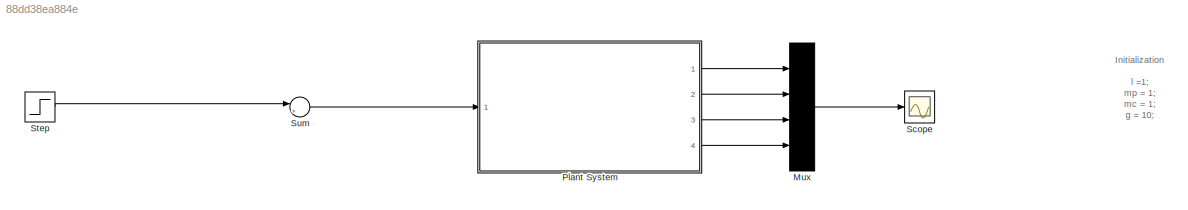
MODEL slx_88dd38ea884e
KIND model
CONFIG AbsTol = auto
CONFIG EnableMultiTasking = off
CONFIG FixedStep = auto
CONFIG MaxStep = auto
CONFIG MinStep = auto
CONFIG PreLoadFcn = l =1;\nmp = 1;\nmc = 1;\ng = 10;\n
CONFIG RelTol = 1e-3
CONFIG SampleTimeConstraint = Unconstrained
CONFIG SolverName = VariableStepAuto
CONFIG StartTime = 0.0
CONFIG StopTime = 2
BLOCK [Mux] Mux
  DisplayOption = bar
  Ports = [4, 1]
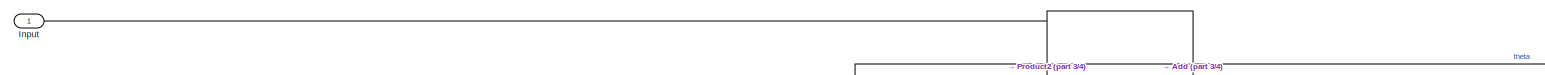
[diagram: Plant System - part 1/4, top left region]
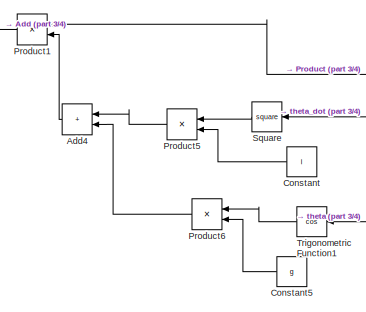
[diagram: Plant System - part 2/4, top left region]
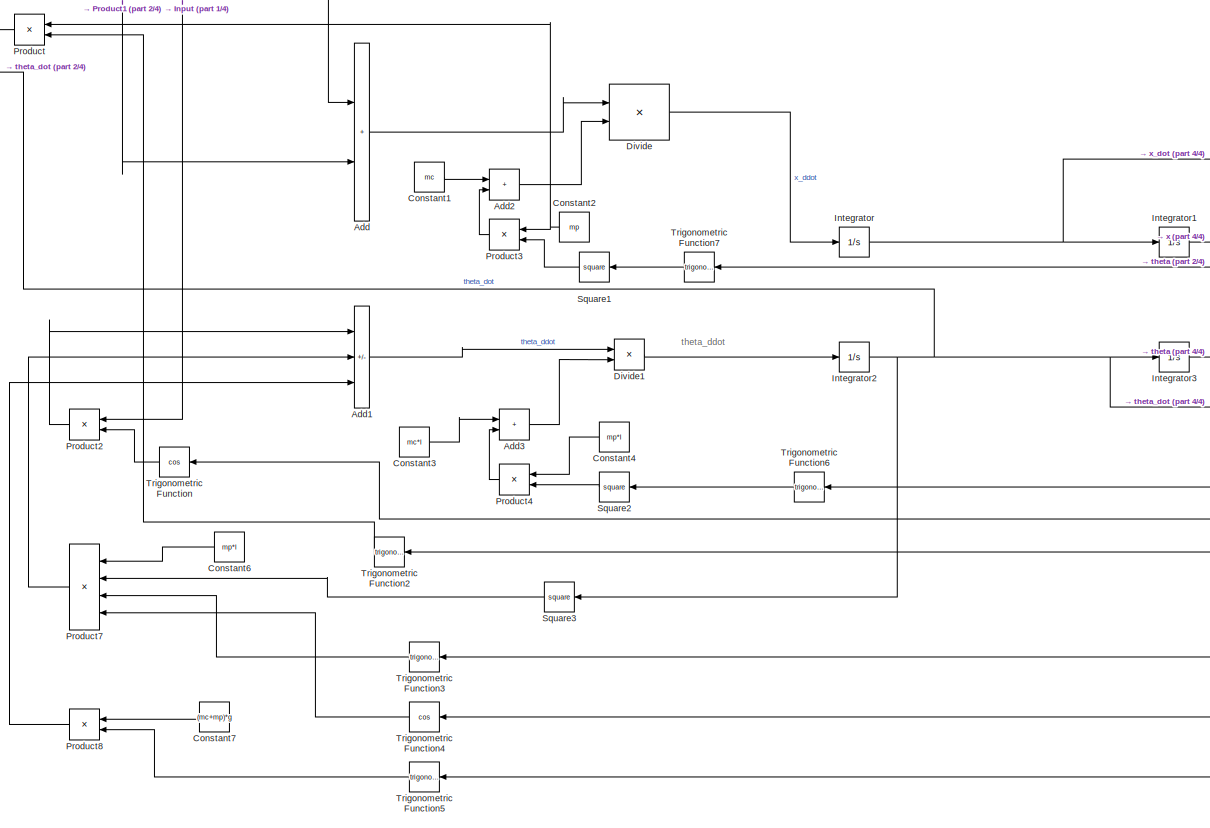
[diagram: Plant System - part 3/4, center side, full height]
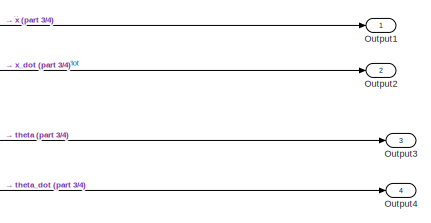
[diagram: Plant System - part 4/4, middle right region]
BLOCK [SubSystem] Plant System
  Ports = [1, 4]
  RequestExecContextInheritance = off
  ShowPortLabels = SignalName
BLOCK [Sum] Plant System/Add
  IconShape = rectangular
  Ports = [2, 1]
BLOCK [Sum] Plant System/Add1
  IconShape = rectangular
  Inputs = ---
  Ports = [3, 1]
BLOCK [Sum] Plant System/Add2
  IconShape = rectangular
  Ports = [2, 1]
BLOCK [Sum] Plant System/Add3
  IconShape = rectangular
  Ports = [2, 1]
BLOCK [Sum] Plant System/Add4
  IconShape = rectangular
  NameLocation = top
  Ports = [2, 1]
BLOCK [Constant] Plant System/Constant
  NameLocation = top
  Value = l
BLOCK [Constant] Plant System/Constant1
  Value = mc
BLOCK [Constant] Plant System/Constant2
  NameLocation = top
  Value = mp
BLOCK [Constant] Plant System/Constant3
  Value = mc*l
BLOCK [Constant] Plant System/Constant4
  NameLocation = top
  Value = mp*l
BLOCK [Constant] Plant System/Constant5
  NameLocation = top
  Value = g
BLOCK [Constant] Plant System/Constant6
  NameLocation = top
  Value = mp*l
BLOCK [Constant] Plant System/Constant7
  NameLocation = top
  Value = (mc+mp)*g
BLOCK [Product] Plant System/Divide
  Inputs = */
  Ports = [2, 1]
BLOCK [Product] Plant System/Divide1
  Inputs = */
  Ports = [2, 1]
BLOCK [Inport] Plant System/Input
BLOCK [Integrator] Plant System/Integrator
  Ports = [1, 1]
BLOCK [Integrator] Plant System/Integrator1
  Ports = [1, 1]
BLOCK [Integrator] Plant System/Integrator2
  Ports = [1, 1]
BLOCK [Integrator] Plant System/Integrator3
  Ports = [1, 1]
BLOCK [Outport] Plant System/Output1
BLOCK [Outport] Plant System/Output2
  Port = 2
BLOCK [Outport] Plant System/Output3
  Port = 3
BLOCK [Outport] Plant System/Output4
  Port = 4
BLOCK [Product] Plant System/Product
  NameLocation = top
  Ports = [2, 1]
BLOCK [Product] Plant System/Product1
  NameLocation = top
  Ports = [2, 1]
BLOCK [Product] Plant System/Product2
  NameLocation = top
  Ports = [2, 1]
BLOCK [Product] Plant System/Product3
  NameLocation = top
  Ports = [2, 1]
BLOCK [Product] Plant System/Product4
  NameLocation = top
  Ports = [2, 1]
BLOCK [Product] Plant System/Product5
  NameLocation = top
  Ports = [2, 1]
BLOCK [Product] Plant System/Product6
  NameLocation = top
  Ports = [2, 1]
BLOCK [Product] Plant System/Product7
  Inputs = 4
  NameLocation = top
  Ports = [4, 1]
BLOCK [Product] Plant System/Product8
  NameLocation = top
  Ports = [2, 1]
BLOCK [Math] Plant System/Square
  NameLocation = top
  Operator = square
  Ports = [1, 1]
BLOCK [Math] Plant System/Square1
  NameLocation = top
  Operator = square
  Ports = [1, 1]
BLOCK [Math] Plant System/Square2
  NameLocation = top
  Operator = square
  Ports = [1, 1]
BLOCK [Math] Plant System/Square3
  NameLocation = top
  Operator = square
  Ports = [1, 1]
BLOCK [Trigonometry] Plant System/Trigonometric Function
  NameLocation = top
  Operator = cos
  Ports = [1, 1]
BLOCK [Trigonometry] Plant System/Trigonometric Function1
  NameLocation = top
  Operator = cos
  Ports = [1, 1]
BLOCK [Trigonometry] Plant System/Trigonometric Function2
  NameLocation = top
  Ports = [1, 1]
BLOCK [Trigonometry] Plant System/Trigonometric Function3
  NameLocation = top
  Ports = [1, 1]
BLOCK [Trigonometry] Plant System/Trigonometric Function4
  NameLocation = top
  Operator = cos
  Ports = [1, 1]
BLOCK [Trigonometry] Plant System/Trigonometric Function5
  NameLocation = top
  Ports = [1, 1]
BLOCK [Trigonometry] Plant System/Trigonometric Function6
  NameLocation = top
  Ports = [1, 1]
BLOCK [Trigonometry] Plant System/Trigonometric Function7
  NameLocation = top
  Ports = [1, 1]
BLOCK [Scope] Scope
  Floating = off
  NumInputPorts = 1
  Ports = [1]
  ScopeSpecificationString = Simulink.scopes.TimeScopeBlockCfg('CurrentConfiguration', extmgr.ConfigurationSet(extmgr.Configuration('Core','General UI',true,'FigureColor',[0 0 0]),extmgr.Configuration('Core','Source UI',true),extmgr.Configuration('Sources','WiredSimulink',true),extmgr.Configuration('Visuals','Time Domain',true,'SerializedDisplays',{struct('MinYLimReal','-0.38269','MaxYLimReal','1.21172','YLabelReal','','MinYL...<+1915ch>
BLOCK [Step] Step
  SampleTime = 0
  Time = 0.0001
BLOCK [Sum] Sum
  Inputs = |+-
  Ports = [2, 1]
ANNOTATION (root): Initialization l =1; mp = 1; mc = 1; g = 10; K = [10 10 10 10];
ANNOTATION Plant System: theta_ddot
LINE Mux:1 -> Scope:1
LINE Plant System/Add1:1 -> Plant System/Divide1:1
LINE Plant System/Add2:1 -> Plant System/Divide:2
LINE Plant System/Add3:1 -> Plant System/Divide1:2
LINE Plant System/Add4:1 -> Plant System/Product1:2
LINE Plant System/Add:1 -> Plant System/Divide:1
LINE Plant System/Constant1:1 -> Plant System/Add2:1
NET Plant System/Constant2:1 -> Plant System/Product3:1, Plant System/Product:1
LINE Plant System/Constant3:1 -> Plant System/Add3:1
LINE Plant System/Constant4:1 -> Plant System/Product4:1
LINE Plant System/Constant5:1 -> Plant System/Product6:2
LINE Plant System/Constant6:1 -> Plant System/Product7:1
LINE Plant System/Constant7:1 -> Plant System/Product8:1
LINE Plant System/Constant:1 -> Plant System/Product5:2
LINE Plant System/Divide1:1 -> Plant System/Integrator2:1
LINE Plant System/Divide:1 -> Plant System/Integrator:1
NET Plant System/Input:1 -> Plant System/Add:1, Plant System/Product2:1
LINE Plant System/Integrator1:1 -> Plant System/Output1:1
NET Plant System/Integrator2:1 -> Plant System/Integrator3:1, Plant System/Output4:1, Plant System/Square3:1, Plant System/Square:1
NET Plant System/Integrator3:1 -> Plant System/Output3:1, Plant System/Trigonometric Function1:1, Plant System/Trigonometric Function2:1, Plant System/Trigonometric Function3:1, Plant System/Trigonometric Function4:1, Plant System/Trigonometric Function5:1, Plant System/Trigonometric Function6:1, Plant System/Trigonometric Function7:1, Plant System/Trigonometric Function:1
NET Plant System/Integrator:1 -> Plant System/Integrator1:1, Plant System/Output2:1
LINE Plant System/Product1:1 -> Plant System/Add:2
LINE Plant System/Product2:1 -> Plant System/Add1:1
LINE Plant System/Product3:1 -> Plant System/Add2:2
LINE Plant System/Product4:1 -> Plant System/Add3:2
LINE Plant System/Product5:1 -> Plant System/Add4:1
LINE Plant System/Product6:1 -> Plant System/Add4:2
LINE Plant System/Product7:1 -> Plant System/Add1:2
LINE Plant System/Product8:1 -> Plant System/Add1:3
LINE Plant System/Product:1 -> Plant System/Product1:1
LINE Plant System/Square1:1 -> Plant System/Product3:2
LINE Plant System/Square2:1 -> Plant System/Product4:2
LINE Plant System/Square3:1 -> Plant System/Product7:2
LINE Plant System/Square:1 -> Plant System/Product5:1
LINE Plant System/Trigonometric Function1:1 -> Plant System/Product6:1
LINE Plant System/Trigonometric Function2:1 -> Plant System/Product:2
LINE Plant System/Trigonometric Function3:1 -> Plant System/Product7:3
LINE Plant System/Trigonometric Function4:1 -> Plant System/Product7:4
LINE Plant System/Trigonometric Function5:1 -> Plant System/Product8:2
LINE Plant System/Trigonometric Function6:1 -> Plant System/Square2:1
LINE Plant System/Trigonometric Function7:1 -> Plant System/Square1:1
LINE Plant System/Trigonometric Function:1 -> Plant System/Product2:2
LINE Plant System:1 -> Mux:1
LINE Plant System:2 -> Mux:2
LINE Plant System:3 -> Mux:3
LINE Plant System:4 -> Mux:4
LINE Step:1 -> Sum:1
LINE Sum:1 -> Plant System:1
note: NET lines group one-source signal fan-out (src -> all destinations, sorted); 1:1 wires keep LINE
